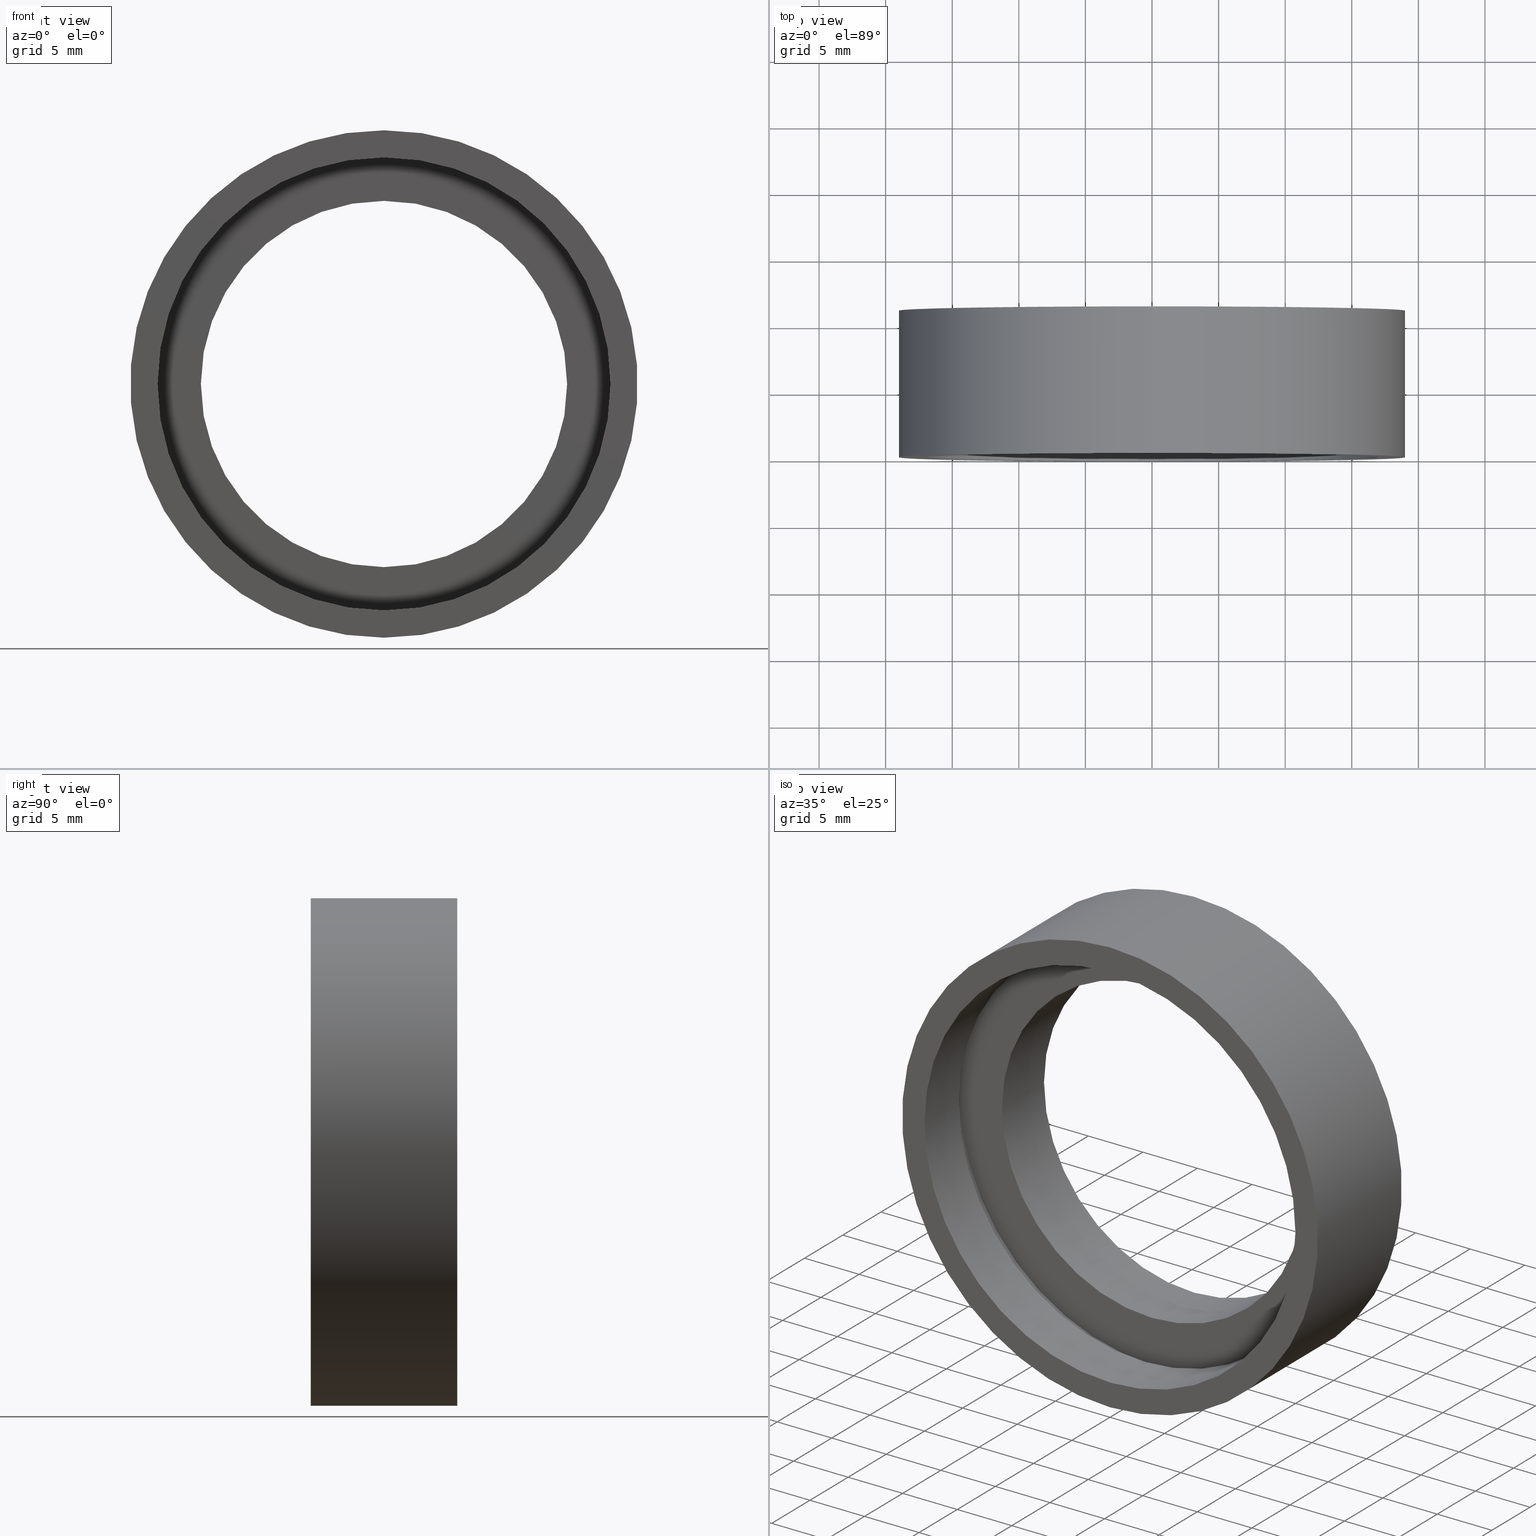
[diagram: canonical four-view strip — front | top / right | iso, engineering-drawing reading convention]
A machine part, canonical four-view strip (front | top / right | iso — engineering-drawing reading convention). The complete STEP part file that produces these views, byte-faithful:
ISO-10303-21;
HEADER;
FILE_DESCRIPTION (( 'STEP AP214' ),
    '1' );
FILE_NAME ('504055.STEP',
    '2019-10-09T06:21:47',
    ( 'user' ),
    ( '΢���й�' ),
    'SwSTEP 2.0',
    'SolidWorks 2016',
    '' );
FILE_SCHEMA (( 'AUTOMOTIVE_DESIGN' ));
ENDSEC;

DATA;
#1 = ORIENTED_EDGE ( 'NONE', *, *, #344, .F. ) ;
#2 = CIRCLE ( 'NONE', #152, 13.75000000000000700 ) ;
#3 = EDGE_LOOP ( 'NONE', ( #84, #98, #19, #55 ) ) ;
#4 = DIRECTION ( 'NONE',  ( -0.0000000000000000000, 1.000000000000000000, -0.0000000000000000000 ) ) ;
#5 = PRODUCT_DEFINITION_FORMATION_WITH_SPECIFIED_SOURCE ( '�κ�', '', #39, .NOT_KNOWN. ) ;
#6 = EDGE_CURVE ( 'NONE', #338, #81, #37, .T. ) ;
#7 = FILL_AREA_STYLE ('',( #386 ) ) ;
#8 = EDGE_LOOP ( 'NONE', ( #198, #415, #69, #122 ) ) ;
#9 = ORIENTED_EDGE ( 'NONE', *, *, #195, .F. ) ;
#10 = ORIENTED_EDGE ( 'NONE', *, *, #197, .F. ) ;
#11 = DIRECTION ( 'NONE',  ( -0.0000000000000000000, 1.000000000000000000, -0.0000000000000000000 ) ) ;
#12 =( NAMED_UNIT ( * ) PLANE_ANGLE_UNIT ( ) SI_UNIT ( $, .RADIAN. ) );
#13 = AXIS2_PLACEMENT_3D ( 'NONE', #382, #27, #38 ) ;
#14 = MECHANICAL_DESIGN_GEOMETRIC_PRESENTATION_REPRESENTATION (  '', ( #35 ), #139 ) ;
#15 = CARTESIAN_POINT ( 'NONE',  ( 0.0000000000000000000, 4.499999999999997300, 17.00000000000000700 ) ) ;
#16 = ORIENTED_EDGE ( 'NONE', *, *, #321, .F. ) ;
#17 = AXIS2_PLACEMENT_3D ( 'NONE', #332, #416, #136 ) ;
#18 = ORIENTED_EDGE ( 'NONE', *, *, #302, .T. ) ;
#19 = ORIENTED_EDGE ( 'NONE', *, *, #299, .T. ) ;
#20 = CARTESIAN_POINT ( 'NONE',  ( 2.081899558550501500E-015, 0.0000000000000000000, -17.00000000000000700 ) ) ;
#21 = AXIS2_PLACEMENT_3D ( 'NONE', #190, #236, #280 ) ;
#22 = VERTEX_POINT ( 'NONE', #266 ) ;
#23 = CARTESIAN_POINT ( 'NONE',  ( 0.0000000000000000000, 5.499999999999998200, 0.0000000000000000000 ) ) ;
#24 = PLANE ( 'NONE',  #384 ) ;
#25 = AXIS2_PLACEMENT_3D ( 'NONE', #166, #159, #422 ) ;
#26 = CARTESIAN_POINT ( 'NONE',  ( 0.0000000000000000000, 10.99999999999999600, 0.0000000000000000000 ) ) ;
#27 = DIRECTION ( 'NONE',  ( 0.0000000000000000000, 0.0000000000000000000, 1.000000000000000000 ) ) ;
#28 = ORIENTED_EDGE ( 'NONE', *, *, #209, .F. ) ;
#29 = EDGE_LOOP ( 'NONE', ( #214, #379 ) ) ;
#30 =( LENGTH_UNIT ( ) NAMED_UNIT ( * ) SI_UNIT ( .MILLI., .METRE. ) );
#31 = DIRECTION ( 'NONE',  ( 0.0000000000000000000, 0.0000000000000000000, 1.000000000000000000 ) ) ;
#32 = SURFACE_SIDE_STYLE ('',( #72 ) ) ;
#33 = CARTESIAN_POINT ( 'NONE',  ( 0.0000000000000000000, 10.99999999999999600, 0.0000000000000000000 ) ) ;
#34 = LINE ( 'NONE', #393, #129 ) ;
#35 = STYLED_ITEM ( 'NONE', ( #254 ), #172 ) ;
#36 = ADVANCED_BREP_SHAPE_REPRESENTATION ( '504055', ( #349, #13 ), #409 ) ;
#37 = CIRCLE ( 'NONE', #146, 19.05000000000000400 ) ;
#38 = DIRECTION ( 'NONE',  ( 1.000000000000000000, 0.0000000000000000000, 0.0000000000000000000 ) ) ;
#39 = PRODUCT ( '504055', '504055', '', ( #307 ) ) ;
#40 = DIRECTION ( 'NONE',  ( -0.0000000000000000000, 1.000000000000000000, -0.0000000000000000000 ) ) ;
#41 = ORIENTED_EDGE ( 'NONE', *, *, #363, .F. ) ;
#42 = LINE ( 'NONE', #121, #51 ) ;
#43 = FACE_OUTER_BOUND ( 'NONE', #315, .T. ) ;
#44 = CYLINDRICAL_SURFACE ( 'NONE', #128, 17.00000000000000700 ) ;
#45 = CARTESIAN_POINT ( 'NONE',  ( 0.0000000000000000000, 60.02082041425541100, 0.0000000000000000000 ) ) ;
#46 = ORIENTED_EDGE ( 'NONE', *, *, #6, .T. ) ;
#47 = DIRECTION ( 'NONE',  ( -0.0000000000000000000, 1.000000000000000000, -0.0000000000000000000 ) ) ;
#48 = AXIS2_PLACEMENT_3D ( 'NONE', #74, #329, #215 ) ;
#49 = PRESENTATION_LAYER_ASSIGNMENT (  '', '', ( #205 ) ) ;
#50 = VERTEX_POINT ( 'NONE', #334 ) ;
#51 = VECTOR ( 'NONE', #179, 1000.000000000000000 ) ;
#52 = CIRCLE ( 'NONE', #161, 17.60000000000001200 ) ;
#53 = ORIENTED_EDGE ( 'NONE', *, *, #360, .F. ) ;
#54 = ORIENTED_EDGE ( 'NONE', *, *, #350, .F. ) ;
#55 = ORIENTED_EDGE ( 'NONE', *, *, #278, .F. ) ;
#56 = CIRCLE ( 'NONE', #48, 17.60000000000001200 ) ;
#57 = CARTESIAN_POINT ( 'NONE',  ( 1.683889348827611800E-015, 10.99999999999999600, -13.75000000000000900 ) ) ;
#58 = VERTEX_POINT ( 'NONE', #57 ) ;
#59 = CIRCLE ( 'NONE', #290, 17.00000000000000700 ) ;
#60 = COLOUR_RGB ( '',1.000000000000000000, 1.000000000000000000, 1.000000000000000000 ) ;
#61 = CARTESIAN_POINT ( 'NONE',  ( 2.155378366499343200E-015, 60.02082041425541100, -17.60000000000001200 ) ) ;
#62 = SURFACE_STYLE_USAGE ( .BOTH. , #319 ) ;
#63 = DIRECTION ( 'NONE',  ( 0.0000000000000000000, 0.0000000000000000000, 1.000000000000000000 ) ) ;
#64 = ORIENTED_EDGE ( 'NONE', *, *, #406, .F. ) ;
#65 = CIRCLE ( 'NONE', #199, 17.60000000000001200 ) ;
#66 = ORIENTED_EDGE ( 'NONE', *, *, #406, .T. ) ;
#67 = CYLINDRICAL_SURFACE ( 'NONE', #317, 13.75000000000000500 ) ;
#68 = CARTESIAN_POINT ( 'NONE',  ( 0.0000000000000000000, 60.02082041425541100, 0.0000000000000000000 ) ) ;
#69 = ORIENTED_EDGE ( 'NONE', *, *, #248, .T. ) ;
#70 = CARTESIAN_POINT ( 'NONE',  ( 0.0000000000000000000, 60.02082041425541100, 17.60000000000001200 ) ) ;
#71 = FACE_OUTER_BOUND ( 'NONE', #8, .T. ) ;
#72 = SURFACE_STYLE_FILL_AREA ( #7 ) ;
#73 = SURFACE_STYLE_USAGE ( .BOTH. , #431 ) ;
#74 = CARTESIAN_POINT ( 'NONE',  ( 0.0000000000000000000, 4.499999999999997300, 0.0000000000000000000 ) ) ;
#75 = CARTESIAN_POINT ( 'NONE',  ( 0.0000000000000000000, 60.02082041425541100, 0.0000000000000000000 ) ) ;
#76 = ADVANCED_FACE ( 'NONE', ( #399 ), #392, .T. ) ;
#77 =( NAMED_UNIT ( * ) PLANE_ANGLE_UNIT ( ) SI_UNIT ( $, .RADIAN. ) );
#78 = SURFACE_STYLE_FILL_AREA ( #247 ) ;
#79 = SURFACE_SIDE_STYLE ('',( #78 ) ) ;
#80 = ADVANCED_FACE ( 'NONE', ( #158 ), #67, .F. ) ;
#81 = VERTEX_POINT ( 'NONE', #359 ) ;
#82 = AXIS2_PLACEMENT_3D ( 'NONE', #301, #336, #31 ) ;
#83 = FILL_AREA_STYLE_COLOUR ( '', #210 ) ;
#84 = ORIENTED_EDGE ( 'NONE', *, *, #186, .F. ) ;
#85 = CARTESIAN_POINT ( 'NONE',  ( 2.332952152375708400E-015, 10.99999999999999600, -19.05000000000000400 ) ) ;
#86 = FACE_OUTER_BOUND ( 'NONE', #260, .T. ) ;
#87 = CLOSED_SHELL ( 'NONE', ( #76, #80, #115, #172, #125, #414, #212, #148, #224, #273, #101, #284 ) ) ;
#88 = CIRCLE ( 'NONE', #144, 17.00000000000000700 ) ;
#89 = APPLICATION_PROTOCOL_DEFINITION ( 'draft international standard', 'automotive_design', 1998, #289 ) ;
#90 = DIRECTION ( 'NONE',  ( 0.0000000000000000000, 0.0000000000000000000, 1.000000000000000000 ) ) ;
#91 = PLANE ( 'NONE',  #25 ) ;
#92 = CARTESIAN_POINT ( 'NONE',  ( 2.081899558550501500E-015, 4.499999999999997300, -17.00000000000000700 ) ) ;
#93 = DIRECTION ( 'NONE',  ( -0.0000000000000000000, 1.000000000000000000, -0.0000000000000000000 ) ) ;
#94 = LINE ( 'NONE', #345, #306 ) ;
#95 = DIRECTION ( 'NONE',  ( -0.0000000000000000000, 1.000000000000000000, -0.0000000000000000000 ) ) ;
#96 = DIRECTION ( 'NONE',  ( -0.0000000000000000000, 1.000000000000000000, -0.0000000000000000000 ) ) ;
#97 = VERTEX_POINT ( 'NONE', #20 ) ;
#98 = ORIENTED_EDGE ( 'NONE', *, *, #350, .T. ) ;
#99 = CIRCLE ( 'NONE', #138, 13.75000000000000700 ) ;
#100 = DIRECTION ( 'NONE',  ( 0.0000000000000000000, 0.0000000000000000000, 1.000000000000000000 ) ) ;
#101 = ADVANCED_FACE ( 'NONE', ( #192, #234 ), #91, .F. ) ;
#102 = AXIS2_PLACEMENT_3D ( 'NONE', #153, #300, #188 ) ;
#103 = UNCERTAINTY_MEASURE_WITH_UNIT (LENGTH_MEASURE( 1.000000000000000100E-005 ), #340, 'distance_accuracy_value', 'NONE');
#104 =( LENGTH_UNIT ( ) NAMED_UNIT ( * ) SI_UNIT ( .MILLI., .METRE. ) );
#105 = FACE_OUTER_BOUND ( 'NONE', #419, .T. ) ;
#106 = DIRECTION ( 'NONE',  ( -0.0000000000000000000, 1.000000000000000000, -0.0000000000000000000 ) ) ;
#107 = CARTESIAN_POINT ( 'NONE',  ( 0.0000000000000000000, 60.02082041425541100, 0.0000000000000000000 ) ) ;
#108 = ORIENTED_EDGE ( 'NONE', *, *, #363, .T. ) ;
#109 = AXIS2_PLACEMENT_3D ( 'NONE', #292, #427, #364 ) ;
#110 = UNCERTAINTY_MEASURE_WITH_UNIT (LENGTH_MEASURE( 1.000000000000000100E-005 ), #30, 'distance_accuracy_value', 'NONE');
#111 = EDGE_LOOP ( 'NONE', ( #16, #28 ) ) ;
#112 = ORIENTED_EDGE ( 'NONE', *, *, #238, .T. ) ;
#113 = EDGE_LOOP ( 'NONE', ( #160, #180 ) ) ;
#114 = VECTOR ( 'NONE', #339, 1000.000000000000000 ) ;
#115 = ADVANCED_FACE ( 'NONE', ( #105 ), #246, .F. ) ;
#116 = DIRECTION ( 'NONE',  ( 0.0000000000000000000, 0.0000000000000000000, 1.000000000000000000 ) ) ;
#117 = AXIS2_PLACEMENT_3D ( 'NONE', #147, #368, #400 ) ;
#118 = ORIENTED_EDGE ( 'NONE', *, *, #321, .T. ) ;
#119 =( NAMED_UNIT ( * ) PLANE_ANGLE_UNIT ( ) SI_UNIT ( $, .RADIAN. ) );
#120 = AXIS2_PLACEMENT_3D ( 'NONE', #356, #310, #90 ) ;
#121 = CARTESIAN_POINT ( 'NONE',  ( 0.0000000000000000000, 60.02082041425541100, 17.00000000000000700 ) ) ;
#122 = ORIENTED_EDGE ( 'NONE', *, *, #360, .T. ) ;
#123 = EDGE_LOOP ( 'NONE', ( #239, #206 ) ) ;
#124 = DIRECTION ( 'NONE',  ( -0.0000000000000000000, 1.000000000000000000, -0.0000000000000000000 ) ) ;
#125 = ADVANCED_FACE ( 'NONE', ( #133, #220 ), #286, .F. ) ;
#126 = APPLICATION_PROTOCOL_DEFINITION ( 'draft international standard', 'automotive_design', 1998, #322 ) ;
#127 = DIRECTION ( 'NONE',  ( -0.0000000000000000000, 1.000000000000000000, -0.0000000000000000000 ) ) ;
#128 = AXIS2_PLACEMENT_3D ( 'NONE', #219, #235, #403 ) ;
#129 = VECTOR ( 'NONE', #47, 1000.000000000000000 ) ;
#130 = VECTOR ( 'NONE', #259, 1000.000000000000000 ) ;
#131 = LINE ( 'NONE', #282, #327 ) ;
#132 = EDGE_CURVE ( 'NONE', #304, #50, #52, .T. ) ;
#133 = FACE_OUTER_BOUND ( 'NONE', #354, .T. ) ;
#134 = CARTESIAN_POINT ( 'NONE',  ( 0.0000000000000000000, 4.499999999999997300, 0.0000000000000000000 ) ) ;
#135 =( NAMED_UNIT ( * ) SI_UNIT ( $, .STERADIAN. ) SOLID_ANGLE_UNIT ( ) );
#136 = DIRECTION ( 'NONE',  ( 0.0000000000000000000, 0.0000000000000000000, 1.000000000000000000 ) ) ;
#137 = VERTEX_POINT ( 'NONE', #298 ) ;
#138 = AXIS2_PLACEMENT_3D ( 'NONE', #378, #127, #63 ) ;
#139 =( GEOMETRIC_REPRESENTATION_CONTEXT ( 3 ) GLOBAL_UNCERTAINTY_ASSIGNED_CONTEXT ( ( #110 ) ) GLOBAL_UNIT_ASSIGNED_CONTEXT ( ( #30, #296, #202 ) ) REPRESENTATION_CONTEXT ( 'NONE', 'WORKASPACE' ) );
#140 = DIRECTION ( 'NONE',  ( -0.0000000000000000000, 1.000000000000000000, -0.0000000000000000000 ) ) ;
#141 = ORIENTED_EDGE ( 'NONE', *, *, #184, .T. ) ;
#142 = FACE_OUTER_BOUND ( 'NONE', #397, .T. ) ;
#143 = DIRECTION ( 'NONE',  ( -0.0000000000000000000, 1.000000000000000000, -0.0000000000000000000 ) ) ;
#144 = AXIS2_PLACEMENT_3D ( 'NONE', #394, #95, #433 ) ;
#145 =( LENGTH_UNIT ( ) NAMED_UNIT ( * ) SI_UNIT ( .MILLI., .METRE. ) );
#146 = AXIS2_PLACEMENT_3D ( 'NONE', #229, #333, #207 ) ;
#147 = CARTESIAN_POINT ( 'NONE',  ( 0.0000000000000000000, 5.499999999999998200, 0.0000000000000000000 ) ) ;
#148 = ADVANCED_FACE ( 'NONE', ( #71 ), #357, .F. ) ;
#149 = ORIENTED_EDGE ( 'NONE', *, *, #299, .F. ) ;
#150 = FILL_AREA_STYLE_COLOUR ( '', #355 ) ;
#151 = FACE_BOUND ( 'NONE', #111, .T. ) ;
#152 = AXIS2_PLACEMENT_3D ( 'NONE', #26, #11, #116 ) ;
#153 = CARTESIAN_POINT ( 'NONE',  ( 0.0000000000000000000, 4.499999999999997300, 0.0000000000000000000 ) ) ;
#154 = LINE ( 'NONE', #70, #408 ) ;
#155 = VERTEX_POINT ( 'NONE', #85 ) ;
#156 = VERTEX_POINT ( 'NONE', #178 ) ;
#157 = UNCERTAINTY_MEASURE_WITH_UNIT (LENGTH_MEASURE( 1.000000000000000100E-005 ), #171, 'distance_accuracy_value', 'NONE');
#158 = FACE_OUTER_BOUND ( 'NONE', #3, .T. ) ;
#159 = DIRECTION ( 'NONE',  ( 0.0000000000000000000, -1.000000000000000000, 0.0000000000000000000 ) ) ;
#160 = ORIENTED_EDGE ( 'NONE', *, *, #174, .T. ) ;
#161 = AXIS2_PLACEMENT_3D ( 'NONE', #134, #230, #430 ) ;
#162 = COLOUR_RGB ( '',1.000000000000000000, 1.000000000000000000, 1.000000000000000000 ) ;
#163 = ORIENTED_EDGE ( 'NONE', *, *, #238, .F. ) ;
#164 = SURFACE_STYLE_FILL_AREA ( #170 ) ;
#165 = AXIS2_PLACEMENT_3D ( 'NONE', #75, #204, #425 ) ;
#166 = CARTESIAN_POINT ( 'NONE',  ( 13.75000000000000700, 10.99999999999999800, 0.0000000000000000000 ) ) ;
#167 = ORIENTED_EDGE ( 'NONE', *, *, #132, .T. ) ;
#168 = ORIENTED_EDGE ( 'NONE', *, *, #176, .F. ) ;
#169 = SURFACE_STYLE_USAGE ( .BOTH. , #335 ) ;
#170 = FILL_AREA_STYLE ('',( #264 ) ) ;
#171 =( LENGTH_UNIT ( ) NAMED_UNIT ( * ) SI_UNIT ( .MILLI., .METRE. ) );
#172 = ADVANCED_FACE ( 'NONE', ( #421 ), #44, .F. ) ;
#173 = MECHANICAL_DESIGN_GEOMETRIC_PRESENTATION_REPRESENTATION (  '', ( #257 ), #341 ) ;
#174 = EDGE_CURVE ( 'NONE', #156, #97, #88, .T. ) ;
#175 = DIRECTION ( 'NONE',  ( 0.0000000000000000000, 0.0000000000000000000, 1.000000000000000000 ) ) ;
#176 = EDGE_CURVE ( 'NONE', #269, #58, #99, .T. ) ;
#177 = ORIENTED_EDGE ( 'NONE', *, *, #278, .T. ) ;
#178 = CARTESIAN_POINT ( 'NONE',  ( 0.0000000000000000000, 0.0000000000000000000, 17.00000000000000700 ) ) ;
#179 = DIRECTION ( 'NONE',  ( -0.0000000000000000000, 1.000000000000000000, -0.0000000000000000000 ) ) ;
#180 = ORIENTED_EDGE ( 'NONE', *, *, #371, .T. ) ;
#181 = STYLED_ITEM ( 'NONE', ( #331 ), #273 ) ;
#182 = SURFACE_STYLE_FILL_AREA ( #200 ) ;
#183 = CIRCLE ( 'NONE', #109, 19.05000000000000400 ) ;
#184 = EDGE_CURVE ( 'NONE', #304, #22, #308, .T. ) ;
#185 = DIRECTION ( 'NONE',  ( 0.0000000000000000000, -0.0000000000000000000, -1.000000000000000000 ) ) ;
#186 = EDGE_CURVE ( 'NONE', #137, #337, #318, .T. ) ;
#187 = DIRECTION ( 'NONE',  ( -0.0000000000000000000, 1.000000000000000000, -0.0000000000000000000 ) ) ;
#188 = DIRECTION ( 'NONE',  ( 0.0000000000000000000, 0.0000000000000000000, 1.000000000000000000 ) ) ;
#189 = ORIENTED_EDGE ( 'NONE', *, *, #325, .T. ) ;
#190 = CARTESIAN_POINT ( 'NONE',  ( 0.0000000000000000000, 60.02082041425541100, 0.0000000000000000000 ) ) ;
#191 = CYLINDRICAL_SURFACE ( 'NONE', #293, 19.05000000000000400 ) ;
#192 = FACE_BOUND ( 'NONE', #434, .T. ) ;
#193 = CARTESIAN_POINT ( 'NONE',  ( 1.683889348827611400E-015, 60.02082041425541100, -13.75000000000000500 ) ) ;
#194 = ORIENTED_EDGE ( 'NONE', *, *, #132, .F. ) ;
#195 = EDGE_CURVE ( 'NONE', #383, #155, #183, .T. ) ;
#196 = CIRCLE ( 'NONE', #297, 17.60000000000001200 ) ;
#197 = EDGE_CURVE ( 'NONE', #337, #137, #216, .T. ) ;
#198 = ORIENTED_EDGE ( 'NONE', *, *, #184, .F. ) ;
#199 = AXIS2_PLACEMENT_3D ( 'NONE', #23, #432, #272 ) ;
#200 = FILL_AREA_STYLE ('',( #83 ) ) ;
#201 = VERTEX_POINT ( 'NONE', #233 ) ;
#202 =( NAMED_UNIT ( * ) SI_UNIT ( $, .STERADIAN. ) SOLID_ANGLE_UNIT ( ) );
#203 =( LENGTH_UNIT ( ) NAMED_UNIT ( * ) SI_UNIT ( .MILLI., .METRE. ) );
#204 = DIRECTION ( 'NONE',  ( -0.0000000000000000000, 1.000000000000000000, -0.0000000000000000000 ) ) ;
#205 = STYLED_ITEM ( 'NONE', ( #270 ), #349 ) ;
#206 = ORIENTED_EDGE ( 'NONE', *, *, #314, .T. ) ;
#207 = DIRECTION ( 'NONE',  ( 0.0000000000000000000, 0.0000000000000000000, 1.000000000000000000 ) ) ;
#208 = UNCERTAINTY_MEASURE_WITH_UNIT (LENGTH_MEASURE( 1.000000000000000100E-005 ), #104, 'distance_accuracy_value', 'NONE');
#209 = EDGE_CURVE ( 'NONE', #346, #263, #405, .T. ) ;
#210 = COLOUR_RGB ( '',1.000000000000000000, 1.000000000000000000, 1.000000000000000000 ) ;
#211 = CARTESIAN_POINT ( 'NONE',  ( 0.0000000000000000000, 60.02082041425541100, 19.05000000000000400 ) ) ;
#212 = ADVANCED_FACE ( 'NONE', ( #151, #43 ), #24, .F. ) ;
#213 = ORIENTED_EDGE ( 'NONE', *, *, #6, .F. ) ;
#214 = ORIENTED_EDGE ( 'NONE', *, *, #197, .T. ) ;
#215 = DIRECTION ( 'NONE',  ( 0.0000000000000000000, 0.0000000000000000000, 1.000000000000000000 ) ) ;
#216 = CIRCLE ( 'NONE', #117, 13.75000000000000500 ) ;
#217 = FILL_AREA_STYLE ('',( #395 ) ) ;
#218 = PRESENTATION_STYLE_ASSIGNMENT (( #62 ) ) ;
#219 = CARTESIAN_POINT ( 'NONE',  ( 0.0000000000000000000, 60.02082041425541100, 0.0000000000000000000 ) ) ;
#220 = FACE_BOUND ( 'NONE', #113, .T. ) ;
#221 =( NAMED_UNIT ( * ) SI_UNIT ( $, .STERADIAN. ) SOLID_ANGLE_UNIT ( ) );
#222 =( NAMED_UNIT ( * ) SI_UNIT ( $, .STERADIAN. ) SOLID_ANGLE_UNIT ( ) );
#223 = FILL_AREA_STYLE_COLOUR ( '', #342 ) ;
#224 = ADVANCED_FACE ( 'NONE', ( #86, #252 ), #370, .F. ) ;
#225 = LINE ( 'NONE', #211, #256 ) ;
#226 = EDGE_LOOP ( 'NONE', ( #46, #112, #9, #242 ) ) ;
#227 = CYLINDRICAL_SURFACE ( 'NONE', #402, 17.00000000000000700 ) ;
#228 = MECHANICAL_DESIGN_GEOMETRIC_PRESENTATION_REPRESENTATION (  '', ( #205 ), #328 ) ;
#229 = CARTESIAN_POINT ( 'NONE',  ( 0.0000000000000000000, 0.0000000000000000000, 0.0000000000000000000 ) ) ;
#230 = DIRECTION ( 'NONE',  ( -0.0000000000000000000, 1.000000000000000000, -0.0000000000000000000 ) ) ;
#231 = CARTESIAN_POINT ( 'NONE',  ( 0.0000000000000000000, 10.99999999999999600, 19.05000000000000400 ) ) ;
#232 = MECHANICAL_DESIGN_GEOMETRIC_PRESENTATION_REPRESENTATION (  '', ( #387 ), #396 ) ;
#233 = CARTESIAN_POINT ( 'NONE',  ( 0.0000000000000000000, 5.499999999999998200, 17.60000000000001200 ) ) ;
#234 = FACE_OUTER_BOUND ( 'NONE', #123, .T. ) ;
#235 = DIRECTION ( 'NONE',  ( -0.0000000000000000000, 1.000000000000000000, -0.0000000000000000000 ) ) ;
#236 = DIRECTION ( 'NONE',  ( -0.0000000000000000000, 1.000000000000000000, -0.0000000000000000000 ) ) ;
#237 = CARTESIAN_POINT ( 'NONE',  ( 0.0000000000000000000, 60.02082041425541100, 0.0000000000000000000 ) ) ;
#238 = EDGE_CURVE ( 'NONE', #81, #155, #94, .T. ) ;
#239 = ORIENTED_EDGE ( 'NONE', *, *, #195, .T. ) ;
#240 = CIRCLE ( 'NONE', #381, 19.05000000000000400 ) ;
#241 = FACE_OUTER_BOUND ( 'NONE', #313, .T. ) ;
#242 = ORIENTED_EDGE ( 'NONE', *, *, #268, .F. ) ;
#243 = ORIENTED_EDGE ( 'NONE', *, *, #248, .F. ) ;
#244 = UNCERTAINTY_MEASURE_WITH_UNIT (LENGTH_MEASURE( 1.000000000000000100E-005 ), #203, 'distance_accuracy_value', 'NONE');
#245 = DIRECTION ( 'NONE',  ( -0.0000000000000000000, 1.000000000000000000, -0.0000000000000000000 ) ) ;
#246 = CYLINDRICAL_SURFACE ( 'NONE', #165, 17.60000000000001200 ) ;
#247 = FILL_AREA_STYLE ('',( #223 ) ) ;
#248 = EDGE_CURVE ( 'NONE', #50, #201, #154, .T. ) ;
#249 = AXIS2_PLACEMENT_3D ( 'NONE', #401, #93, #369 ) ;
#250 = COLOUR_RGB ( '',1.000000000000000000, 1.000000000000000000, 1.000000000000000000 ) ;
#251 = PRESENTATION_STYLE_ASSIGNMENT (( #169 ) ) ;
#252 = FACE_BOUND ( 'NONE', #29, .T. ) ;
#253 = PRODUCT_DEFINITION_CONTEXT ( 'detailed design', #289, 'design' ) ;
#254 = PRESENTATION_STYLE_ASSIGNMENT (( #262 ) ) ;
#255 = SURFACE_STYLE_USAGE ( .BOTH. , #32 ) ;
#256 = VECTOR ( 'NONE', #106, 1000.000000000000000 ) ;
#257 = STYLED_ITEM ( 'NONE', ( #320 ), #80 ) ;
#258 = CARTESIAN_POINT ( 'NONE',  ( 0.0000000000000000000, 0.0000000000000000000, 19.05000000000000400 ) ) ;
#259 = DIRECTION ( 'NONE',  ( -0.0000000000000000000, 1.000000000000000000, -0.0000000000000000000 ) ) ;
#260 = EDGE_LOOP ( 'NONE', ( #53, #1 ) ) ;
#261 =( NAMED_UNIT ( * ) SI_UNIT ( $, .STERADIAN. ) SOLID_ANGLE_UNIT ( ) );
#262 = SURFACE_STYLE_USAGE ( .BOTH. , #417 ) ;
#263 = VERTEX_POINT ( 'NONE', #15 ) ;
#264 = FILL_AREA_STYLE_COLOUR ( '', #162 ) ;
#265 = CARTESIAN_POINT ( 'NONE',  ( 0.0000000000000000000, 5.499999999999998200, 0.0000000000000000000 ) ) ;
#266 = CARTESIAN_POINT ( 'NONE',  ( 2.155378366499343200E-015, 5.499999999999998200, -17.60000000000001200 ) ) ;
#267 = AXIS2_PLACEMENT_3D ( 'NONE', #68, #124, #385 ) ;
#268 = EDGE_CURVE ( 'NONE', #338, #383, #225, .T. ) ;
#269 = VERTEX_POINT ( 'NONE', #375 ) ;
#270 = PRESENTATION_STYLE_ASSIGNMENT (( #353 ) ) ;
#271 = CARTESIAN_POINT ( 'NONE',  ( 17.00000000000000700, 4.499999999999999100, 0.0000000000000000000 ) ) ;
#272 = DIRECTION ( 'NONE',  ( 0.0000000000000000000, 0.0000000000000000000, 1.000000000000000000 ) ) ;
#273 = ADVANCED_FACE ( 'NONE', ( #241 ), #398, .F. ) ;
#274 = CARTESIAN_POINT ( 'NONE',  ( 0.0000000000000000000, 4.499999999999997300, 0.0000000000000000000 ) ) ;
#275 = ORIENTED_EDGE ( 'NONE', *, *, #209, .T. ) ;
#276 = AXIS2_PLACEMENT_3D ( 'NONE', #33, #324, #175 ) ;
#277 = ORIENTED_EDGE ( 'NONE', *, *, #268, .T. ) ;
#278 = EDGE_CURVE ( 'NONE', #337, #269, #131, .T. ) ;
#279 = PRESENTATION_LAYER_ASSIGNMENT (  '', '', ( #35 ) ) ;
#280 = DIRECTION ( 'NONE',  ( 0.0000000000000000000, 0.0000000000000000000, 1.000000000000000000 ) ) ;
#281 = ORIENTED_EDGE ( 'NONE', *, *, #174, .F. ) ;
#282 = CARTESIAN_POINT ( 'NONE',  ( 0.0000000000000000000, 60.02082041425541100, 13.75000000000000500 ) ) ;
#283 = MECHANICAL_DESIGN_GEOMETRIC_PRESENTATION_REPRESENTATION (  '', ( #181 ), #309 ) ;
#284 = ADVANCED_FACE ( 'NONE', ( #142 ), #191, .T. ) ;
#285 = SHAPE_DEFINITION_REPRESENTATION ( #410, #36 ) ;
#286 = PLANE ( 'NONE',  #17 ) ;
#287 =( NAMED_UNIT ( * ) PLANE_ANGLE_UNIT ( ) SI_UNIT ( $, .RADIAN. ) );
#288 = DIRECTION ( 'NONE',  ( 0.0000000000000000000, 0.0000000000000000000, 1.000000000000000000 ) ) ;
#289 = APPLICATION_CONTEXT ( 'automotive_design' ) ;
#290 = AXIS2_PLACEMENT_3D ( 'NONE', #274, #4, #358 ) ;
#291 = SURFACE_STYLE_FILL_AREA ( #217 ) ;
#292 = CARTESIAN_POINT ( 'NONE',  ( 0.0000000000000000000, 10.99999999999999600, 0.0000000000000000000 ) ) ;
#293 = AXIS2_PLACEMENT_3D ( 'NONE', #45, #143, #380 ) ;
#294 = ORIENTED_EDGE ( 'NONE', *, *, #314, .F. ) ;
#295 = SURFACE_STYLE_FILL_AREA ( #390 ) ;
#296 =( NAMED_UNIT ( * ) PLANE_ANGLE_UNIT ( ) SI_UNIT ( $, .RADIAN. ) );
#297 = AXIS2_PLACEMENT_3D ( 'NONE', #265, #40, #288 ) ;
#298 = CARTESIAN_POINT ( 'NONE',  ( 1.683889348827611400E-015, 5.499999999999998200, -13.75000000000000500 ) ) ;
#299 = EDGE_CURVE ( 'NONE', #58, #269, #2, .T. ) ;
#300 = DIRECTION ( 'NONE',  ( -0.0000000000000000000, 1.000000000000000000, -0.0000000000000000000 ) ) ;
#301 = CARTESIAN_POINT ( 'NONE',  ( 17.60000000000001200, 5.499999999999998200, 0.0000000000000000000 ) ) ;
#302 = EDGE_CURVE ( 'NONE', #97, #346, #34, .T. ) ;
#303 =( NAMED_UNIT ( * ) SI_UNIT ( $, .STERADIAN. ) SOLID_ANGLE_UNIT ( ) );
#304 = VERTEX_POINT ( 'NONE', #326 ) ;
#305 = CIRCLE ( 'NONE', #276, 19.05000000000000400 ) ;
#306 = VECTOR ( 'NONE', #245, 1000.000000000000000 ) ;
#307 = PRODUCT_CONTEXT ( 'NONE', #322, 'mechanical' ) ;
#308 = LINE ( 'NONE', #61, #130 ) ;
#309 =( GEOMETRIC_REPRESENTATION_CONTEXT ( 3 ) GLOBAL_UNCERTAINTY_ASSIGNED_CONTEXT ( ( #330 ) ) GLOBAL_UNIT_ASSIGNED_CONTEXT ( ( #145, #77, #261 ) ) REPRESENTATION_CONTEXT ( 'NONE', 'WORKASPACE' ) );
#310 = DIRECTION ( 'NONE',  ( -0.0000000000000000000, 1.000000000000000000, -0.0000000000000000000 ) ) ;
#311 = DIRECTION ( 'NONE',  ( 0.0000000000000000000, 0.0000000000000000000, 1.000000000000000000 ) ) ;
#312 = ORIENTED_EDGE ( 'NONE', *, *, #344, .T. ) ;
#313 = EDGE_LOOP ( 'NONE', ( #54, #10, #177, #323 ) ) ;
#314 = EDGE_CURVE ( 'NONE', #155, #383, #305, .T. ) ;
#315 = EDGE_LOOP ( 'NONE', ( #189, #167 ) ) ;
#316 = LINE ( 'NONE', #193, #114 ) ;
#317 = AXIS2_PLACEMENT_3D ( 'NONE', #423, #96, #388 ) ;
#318 = CIRCLE ( 'NONE', #120, 13.75000000000000500 ) ;
#319 = SURFACE_SIDE_STYLE ('',( #182 ) ) ;
#320 = PRESENTATION_STYLE_ASSIGNMENT (( #73 ) ) ;
#321 = EDGE_CURVE ( 'NONE', #263, #346, #59, .T. ) ;
#322 = APPLICATION_CONTEXT ( 'automotive_design' ) ;
#323 = ORIENTED_EDGE ( 'NONE', *, *, #176, .T. ) ;
#324 = DIRECTION ( 'NONE',  ( -0.0000000000000000000, 1.000000000000000000, -0.0000000000000000000 ) ) ;
#325 = EDGE_CURVE ( 'NONE', #50, #304, #56, .T. ) ;
#326 = CARTESIAN_POINT ( 'NONE',  ( 2.155378366499343200E-015, 4.499999999999997300, -17.60000000000001200 ) ) ;
#327 = VECTOR ( 'NONE', #377, 1000.000000000000000 ) ;
#328 =( GEOMETRIC_REPRESENTATION_CONTEXT ( 3 ) GLOBAL_UNCERTAINTY_ASSIGNED_CONTEXT ( ( #103 ) ) GLOBAL_UNIT_ASSIGNED_CONTEXT ( ( #340, #119, #221 ) ) REPRESENTATION_CONTEXT ( 'NONE', 'WORKASPACE' ) );
#329 = DIRECTION ( 'NONE',  ( -0.0000000000000000000, 1.000000000000000000, -0.0000000000000000000 ) ) ;
#330 = UNCERTAINTY_MEASURE_WITH_UNIT (LENGTH_MEASURE( 1.000000000000000100E-005 ), #145, 'distance_accuracy_value', 'NONE');
#331 = PRESENTATION_STYLE_ASSIGNMENT (( #255 ) ) ;
#332 = CARTESIAN_POINT ( 'NONE',  ( 19.05000000000000400, -5.143516556418878000E-016, 0.0000000000000000000 ) ) ;
#333 = DIRECTION ( 'NONE',  ( -0.0000000000000000000, 1.000000000000000000, -0.0000000000000000000 ) ) ;
#334 = CARTESIAN_POINT ( 'NONE',  ( 0.0000000000000000000, 4.499999999999997300, 17.60000000000001200 ) ) ;
#335 = SURFACE_SIDE_STYLE ('',( #295 ) ) ;
#336 = DIRECTION ( 'NONE',  ( -0.0000000000000000000, 1.000000000000000000, 0.0000000000000000000 ) ) ;
#337 = VERTEX_POINT ( 'NONE', #361 ) ;
#338 = VERTEX_POINT ( 'NONE', #258 ) ;
#339 = DIRECTION ( 'NONE',  ( -0.0000000000000000000, 1.000000000000000000, -0.0000000000000000000 ) ) ;
#340 =( LENGTH_UNIT ( ) NAMED_UNIT ( * ) SI_UNIT ( .MILLI., .METRE. ) );
#341 =( GEOMETRIC_REPRESENTATION_CONTEXT ( 3 ) GLOBAL_UNCERTAINTY_ASSIGNED_CONTEXT ( ( #413 ) ) GLOBAL_UNIT_ASSIGNED_CONTEXT ( ( #367, #12, #135 ) ) REPRESENTATION_CONTEXT ( 'NONE', 'WORKASPACE' ) );
#342 = COLOUR_RGB ( '',1.000000000000000000, 1.000000000000000000, 1.000000000000000000 ) ;
#343 = DIRECTION ( 'NONE',  ( 0.0000000000000000000, -1.000000000000000000, 0.0000000000000000000 ) ) ;
#344 = EDGE_CURVE ( 'NONE', #22, #201, #65, .T. ) ;
#345 = CARTESIAN_POINT ( 'NONE',  ( 2.332952152375708400E-015, 60.02082041425541100, -19.05000000000000400 ) ) ;
#346 = VERTEX_POINT ( 'NONE', #92 ) ;
#347 = DIRECTION ( 'NONE',  ( 0.0000000000000000000, 0.0000000000000000000, 1.000000000000000000 ) ) ;
#348 = PRODUCT_RELATED_PRODUCT_CATEGORY ( 'part', '', ( #39 ) ) ;
#349 = MANIFOLD_SOLID_BREP ( '��ת1', #87 ) ;
#350 = EDGE_CURVE ( 'NONE', #137, #58, #316, .T. ) ;
#351 = EDGE_LOOP ( 'NONE', ( #391, #281, #66, #118 ) ) ;
#352 = DIRECTION ( 'NONE',  ( -0.0000000000000000000, 1.000000000000000000, -0.0000000000000000000 ) ) ;
#353 = SURFACE_STYLE_USAGE ( .BOTH. , #79 ) ;
#354 = EDGE_LOOP ( 'NONE', ( #213, #41 ) ) ;
#355 = COLOUR_RGB ( '',1.000000000000000000, 1.000000000000000000, 1.000000000000000000 ) ;
#356 = CARTESIAN_POINT ( 'NONE',  ( 0.0000000000000000000, 5.499999999999998200, 0.0000000000000000000 ) ) ;
#357 = CYLINDRICAL_SURFACE ( 'NONE', #21, 17.60000000000001200 ) ;
#358 = DIRECTION ( 'NONE',  ( 0.0000000000000000000, 0.0000000000000000000, 1.000000000000000000 ) ) ;
#359 = CARTESIAN_POINT ( 'NONE',  ( 2.332952152375708400E-015, 0.0000000000000000000, -19.05000000000000400 ) ) ;
#360 = EDGE_CURVE ( 'NONE', #201, #22, #196, .T. ) ;
#361 = CARTESIAN_POINT ( 'NONE',  ( 0.0000000000000000000, 5.499999999999998200, 13.75000000000000500 ) ) ;
#362 = CIRCLE ( 'NONE', #249, 17.00000000000000700 ) ;
#363 = EDGE_CURVE ( 'NONE', #81, #338, #240, .T. ) ;
#364 = DIRECTION ( 'NONE',  ( 0.0000000000000000000, 0.0000000000000000000, 1.000000000000000000 ) ) ;
#365 = EDGE_LOOP ( 'NONE', ( #374, #18, #275, #64 ) ) ;
#366 = PRESENTATION_LAYER_ASSIGNMENT (  '', '', ( #257 ) ) ;
#367 =( LENGTH_UNIT ( ) NAMED_UNIT ( * ) SI_UNIT ( .MILLI., .METRE. ) );
#368 = DIRECTION ( 'NONE',  ( -0.0000000000000000000, 1.000000000000000000, -0.0000000000000000000 ) ) ;
#369 = DIRECTION ( 'NONE',  ( 0.0000000000000000000, 0.0000000000000000000, 1.000000000000000000 ) ) ;
#370 = PLANE ( 'NONE',  #82 ) ;
#371 = EDGE_CURVE ( 'NONE', #97, #156, #362, .T. ) ;
#372 =( NAMED_UNIT ( * ) PLANE_ANGLE_UNIT ( ) SI_UNIT ( $, .RADIAN. ) );
#373 = FACE_OUTER_BOUND ( 'NONE', #351, .T. ) ;
#374 = ORIENTED_EDGE ( 'NONE', *, *, #371, .F. ) ;
#375 = CARTESIAN_POINT ( 'NONE',  ( 0.0000000000000000000, 10.99999999999999600, 13.75000000000000700 ) ) ;
#376 = AXIS2_PLACEMENT_3D ( 'NONE', #107, #352, #311 ) ;
#377 = DIRECTION ( 'NONE',  ( -0.0000000000000000000, 1.000000000000000000, -0.0000000000000000000 ) ) ;
#378 = CARTESIAN_POINT ( 'NONE',  ( 0.0000000000000000000, 10.99999999999999600, 0.0000000000000000000 ) ) ;
#379 = ORIENTED_EDGE ( 'NONE', *, *, #186, .T. ) ;
#380 = DIRECTION ( 'NONE',  ( 0.0000000000000000000, 0.0000000000000000000, 1.000000000000000000 ) ) ;
#381 = AXIS2_PLACEMENT_3D ( 'NONE', #404, #429, #100 ) ;
#382 = CARTESIAN_POINT ( 'NONE',  ( 0.0000000000000000000, 0.0000000000000000000, 0.0000000000000000000 ) ) ;
#383 = VERTEX_POINT ( 'NONE', #231 ) ;
#384 = AXIS2_PLACEMENT_3D ( 'NONE', #271, #343, #185 ) ;
#385 = DIRECTION ( 'NONE',  ( 0.0000000000000000000, 0.0000000000000000000, 1.000000000000000000 ) ) ;
#386 = FILL_AREA_STYLE_COLOUR ( '', #250 ) ;
#387 = STYLED_ITEM ( 'NONE', ( #251 ), #414 ) ;
#388 = DIRECTION ( 'NONE',  ( 0.0000000000000000000, 0.0000000000000000000, 1.000000000000000000 ) ) ;
#389 = PRESENTATION_LAYER_ASSIGNMENT (  '', '', ( #387 ) ) ;
#390 = FILL_AREA_STYLE ('',( #150 ) ) ;
#391 = ORIENTED_EDGE ( 'NONE', *, *, #302, .F. ) ;
#392 = CYLINDRICAL_SURFACE ( 'NONE', #376, 19.05000000000000400 ) ;
#393 = CARTESIAN_POINT ( 'NONE',  ( 2.081899558550501500E-015, 60.02082041425541100, -17.00000000000000700 ) ) ;
#394 = CARTESIAN_POINT ( 'NONE',  ( 0.0000000000000000000, 0.0000000000000000000, 0.0000000000000000000 ) ) ;
#395 = FILL_AREA_STYLE_COLOUR ( '', #60 ) ;
#396 =( GEOMETRIC_REPRESENTATION_CONTEXT ( 3 ) GLOBAL_UNCERTAINTY_ASSIGNED_CONTEXT ( ( #157 ) ) GLOBAL_UNIT_ASSIGNED_CONTEXT ( ( #171, #287, #222 ) ) REPRESENTATION_CONTEXT ( 'NONE', 'WORKASPACE' ) );
#397 = EDGE_LOOP ( 'NONE', ( #163, #108, #277, #294 ) ) ;
#398 = CYLINDRICAL_SURFACE ( 'NONE', #267, 13.75000000000000500 ) ;
#399 = FACE_OUTER_BOUND ( 'NONE', #226, .T. ) ;
#400 = DIRECTION ( 'NONE',  ( 0.0000000000000000000, 0.0000000000000000000, 1.000000000000000000 ) ) ;
#401 = CARTESIAN_POINT ( 'NONE',  ( 0.0000000000000000000, 0.0000000000000000000, 0.0000000000000000000 ) ) ;
#402 = AXIS2_PLACEMENT_3D ( 'NONE', #237, #140, #347 ) ;
#403 = DIRECTION ( 'NONE',  ( 0.0000000000000000000, 0.0000000000000000000, 1.000000000000000000 ) ) ;
#404 = CARTESIAN_POINT ( 'NONE',  ( 0.0000000000000000000, 0.0000000000000000000, 0.0000000000000000000 ) ) ;
#405 = CIRCLE ( 'NONE', #102, 17.00000000000000700 ) ;
#406 = EDGE_CURVE ( 'NONE', #156, #263, #42, .T. ) ;
#407 = STYLED_ITEM ( 'NONE', ( #218 ), #36 ) ;
#408 = VECTOR ( 'NONE', #187, 1000.000000000000000 ) ;
#409 =( GEOMETRIC_REPRESENTATION_CONTEXT ( 3 ) GLOBAL_UNCERTAINTY_ASSIGNED_CONTEXT ( ( #208 ) ) GLOBAL_UNIT_ASSIGNED_CONTEXT ( ( #104, #420, #303 ) ) REPRESENTATION_CONTEXT ( 'NONE', 'WORKASPACE' ) );
#410 = PRODUCT_DEFINITION_SHAPE ( 'NONE', 'NONE',  #428 ) ;
#411 =( NAMED_UNIT ( * ) SI_UNIT ( $, .STERADIAN. ) SOLID_ANGLE_UNIT ( ) );
#412 =( GEOMETRIC_REPRESENTATION_CONTEXT ( 3 ) GLOBAL_UNCERTAINTY_ASSIGNED_CONTEXT ( ( #244 ) ) GLOBAL_UNIT_ASSIGNED_CONTEXT ( ( #203, #372, #411 ) ) REPRESENTATION_CONTEXT ( 'NONE', 'WORKASPACE' ) );
#413 = UNCERTAINTY_MEASURE_WITH_UNIT (LENGTH_MEASURE( 1.000000000000000100E-005 ), #367, 'distance_accuracy_value', 'NONE');
#414 = ADVANCED_FACE ( 'NONE', ( #373 ), #227, .F. ) ;
#415 = ORIENTED_EDGE ( 'NONE', *, *, #325, .F. ) ;
#416 = DIRECTION ( 'NONE',  ( -0.0000000000000000000, 1.000000000000000000, 0.0000000000000000000 ) ) ;
#417 = SURFACE_SIDE_STYLE ('',( #291 ) ) ;
#418 = MECHANICAL_DESIGN_GEOMETRIC_PRESENTATION_REPRESENTATION (  '', ( #407 ), #412 ) ;
#419 = EDGE_LOOP ( 'NONE', ( #194, #141, #312, #243 ) ) ;
#420 =( NAMED_UNIT ( * ) PLANE_ANGLE_UNIT ( ) SI_UNIT ( $, .RADIAN. ) );
#421 = FACE_OUTER_BOUND ( 'NONE', #365, .T. ) ;
#422 = DIRECTION ( 'NONE',  ( 0.0000000000000000000, -0.0000000000000000000, -1.000000000000000000 ) ) ;
#423 = CARTESIAN_POINT ( 'NONE',  ( 0.0000000000000000000, 60.02082041425541100, 0.0000000000000000000 ) ) ;
#424 = PRESENTATION_LAYER_ASSIGNMENT (  '', '', ( #181 ) ) ;
#425 = DIRECTION ( 'NONE',  ( 0.0000000000000000000, 0.0000000000000000000, 1.000000000000000000 ) ) ;
#426 = PRESENTATION_LAYER_ASSIGNMENT (  '', '', ( #407 ) ) ;
#427 = DIRECTION ( 'NONE',  ( -0.0000000000000000000, 1.000000000000000000, -0.0000000000000000000 ) ) ;
#428 = PRODUCT_DEFINITION ( 'δ֪', '', #5, #253 ) ;
#429 = DIRECTION ( 'NONE',  ( -0.0000000000000000000, 1.000000000000000000, -0.0000000000000000000 ) ) ;
#430 = DIRECTION ( 'NONE',  ( 0.0000000000000000000, 0.0000000000000000000, 1.000000000000000000 ) ) ;
#431 = SURFACE_SIDE_STYLE ('',( #164 ) ) ;
#432 = DIRECTION ( 'NONE',  ( -0.0000000000000000000, 1.000000000000000000, -0.0000000000000000000 ) ) ;
#433 = DIRECTION ( 'NONE',  ( 0.0000000000000000000, 0.0000000000000000000, 1.000000000000000000 ) ) ;
#434 = EDGE_LOOP ( 'NONE', ( #168, #149 ) ) ;
ENDSEC;
END-ISO-10303-21;
